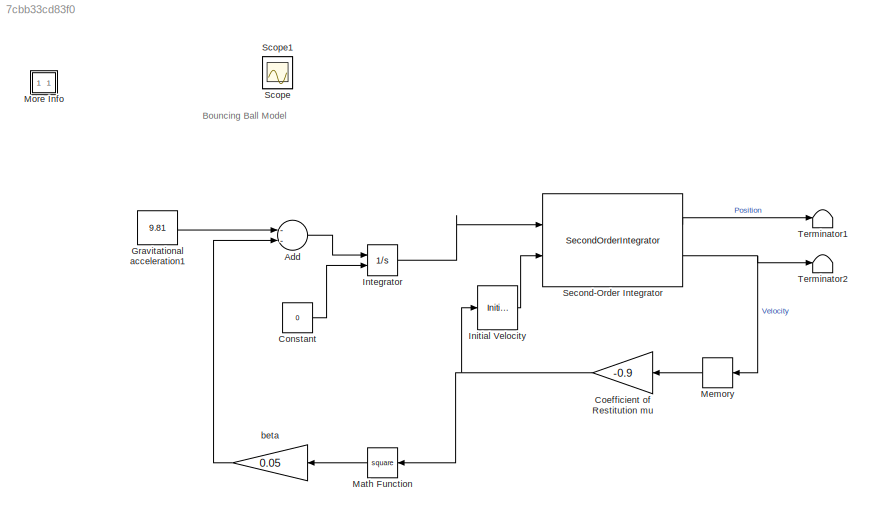
MODEL slx_7cbb33cd83f0
KIND model
CONFIG AbsTol = 1E-6
CONFIG EnableMultiTasking = on
CONFIG FixedStep = auto
CONFIG MaxStep = 0.01
CONFIG MinStep = auto
CONFIG RelTol = 1e-3
CONFIG SampleTimeConstraint = Unconstrained
CONFIG Solver = ode23
CONFIG SolverName = ode23
CONFIG StartTime = 0.0
CONFIG StopTime = 4
BLOCK [Sum] Add
  InputSameDT = off
  Inputs = --
  OutDataTypeStr = Inherit: Inherit via internal rule
  Ports = [2, 1]
  SaturateOnIntegerOverflow = off
BLOCK [Gain] Coefficient of Restitution mu
  Gain = -0.9
  OutDataTypeStr = Inherit: Inherit via internal rule
  ParamDataTypeStr = Inherit: Inherit via internal rule
  SaturateOnIntegerOverflow = off
BLOCK [Constant] Constant
  Value = 0
BLOCK [Constant] Gravitational acceleration1
  OutDataTypeStr = double
  Value = 9.81
BLOCK [InitialCondition] Initial Velocity 
  Value = 0
BLOCK [Integrator] Integrator
  InitialConditionSource = external
  Ports = [2, 1]
BLOCK [Math] Math Function
  Operator = square
  OutputSignalType = real
  Ports = [1, 1]
BLOCK [Memory] Memory
BLOCK [SubSystem] More Info
  OpenFcn = showdemo(bdroot(gcs))
  Ports = []
  RequestExecContextInheritance = off
  Variant = off
BLOCK [Scope] Scope
  IOType = viewer
  NumInputPorts = 1
  Ports = []
  ScopeSpecificationString = Simulink.scopes.TimeScopeBlockCfg('CurrentConfiguration', extmgr.ConfigurationSet(extmgr.Configuration('Core','General UI',true),extmgr.Configuration('Core','Source UI',true),extmgr.Configuration('Sources','WiredSimulink',true),extmgr.Configuration('Visuals','Time Domain',true,'SerializedDisplays',{struct('MinYLimReal','-60.37412','MaxYLimReal','24.84354','YLabelReal','','MinYLimMag','0.00000','Ma...<+1386ch>
BLOCK [Scope] Scope1
  IOType = viewer
  NumInputPorts = 1
  Ports = []
  ScopeSpecificationString = Simulink.scopes.TimeScopeBlockCfg('CurrentConfiguration', extmgr.ConfigurationSet(extmgr.Configuration('Core','General UI',true),extmgr.Configuration('Core','Source UI',true),extmgr.Configuration('Sources','WiredSimulink',true,'DataLoggingVariableName','ScopeData1'),extmgr.Configuration('Visuals','Time Domain',true,'SerializedDisplays',{struct('MinYLimReal','-18.56602','MaxYLimReal','20.1982','YLa...<+1378ch>
BLOCK [SecondOrderIntegrator] Second-Order Integrator
  ICSourceDXDT = external
  ICX = 10.0
  LimitX = on
  LowerLimitX = 0.0
  Ports = [2, 2]
  ReinitDXDTwhenXreachesSaturation = on
  StateNameDXDT = 'Velocity'
  StateNameX = 'Position'
BLOCK [Terminator] Terminator1
BLOCK [Terminator] Terminator2
BLOCK [Gain] beta
  Gain = 0.05
  OutDataTypeStr = Inherit: Inherit via internal rule
  ParamDataTypeStr = Inherit: Inherit via internal rule
  SaturateOnIntegerOverflow = off
ANNOTATION (root): Bouncing Ball Model
LINE Add:1 -> Integrator:1
NET Coefficient of Restitution mu:1 -> Initial Velocity :1, Math Function:1
LINE Constant:1 -> Integrator:2
LINE Gravitational acceleration1:1 -> Add:1
LINE Initial Velocity :1 -> Second-Order Integrator:2
LINE Integrator:1 -> Second-Order Integrator:1
LINE Math Function:1 -> beta:1
LINE Memory:1 -> Coefficient of Restitution mu:1
LINE Second-Order Integrator:1 -> Terminator1:1
NET Second-Order Integrator:2 -> Memory:1, Terminator2:1
LINE beta:1 -> Add:2
note: NET lines group one-source signal fan-out (src -> all destinations, sorted); 1:1 wires keep LINE
